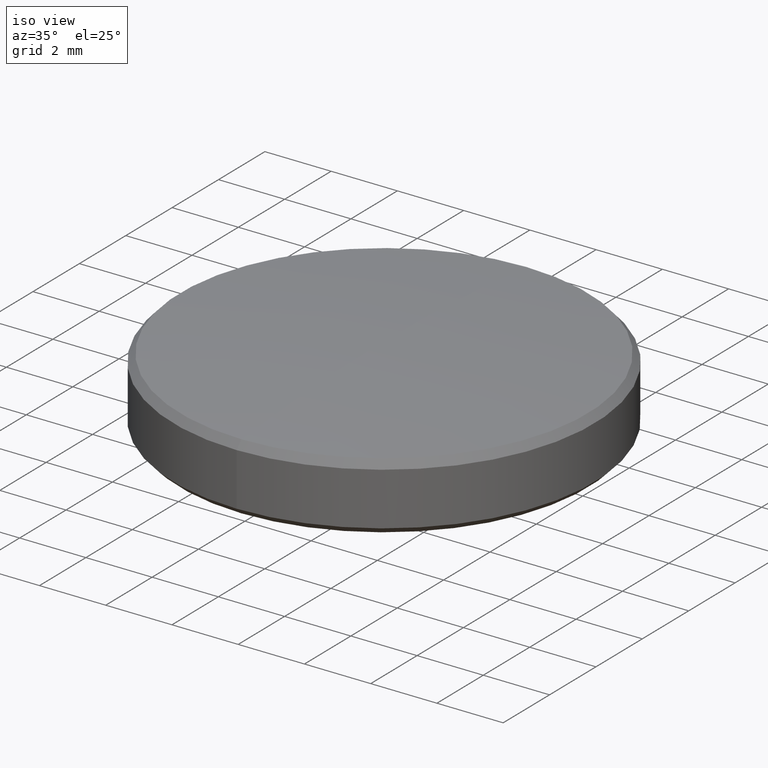
[diagram: clean part render]
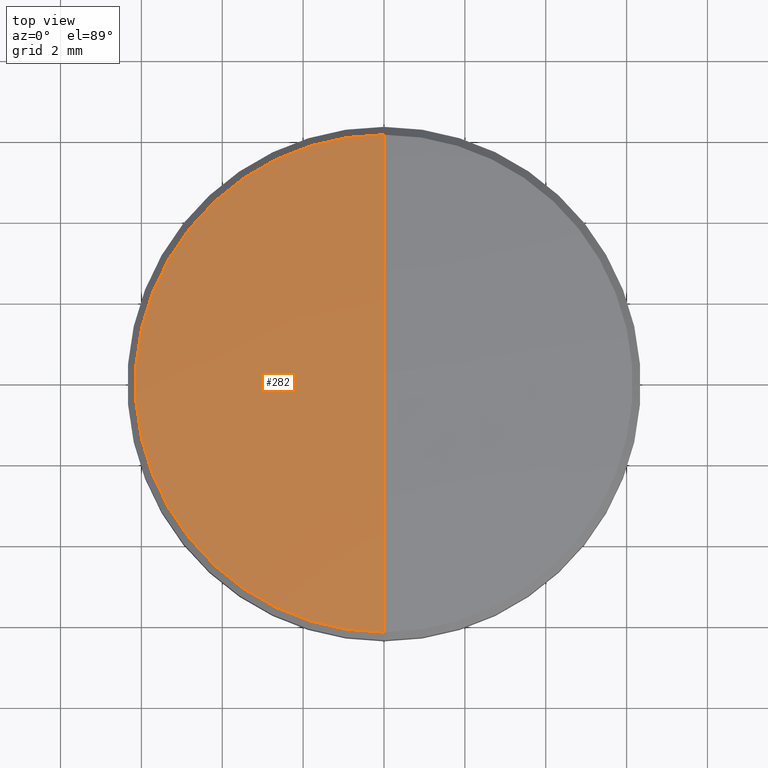
[diagram: tour spotlight — one face highlighted and labeled with its STEP entity id]
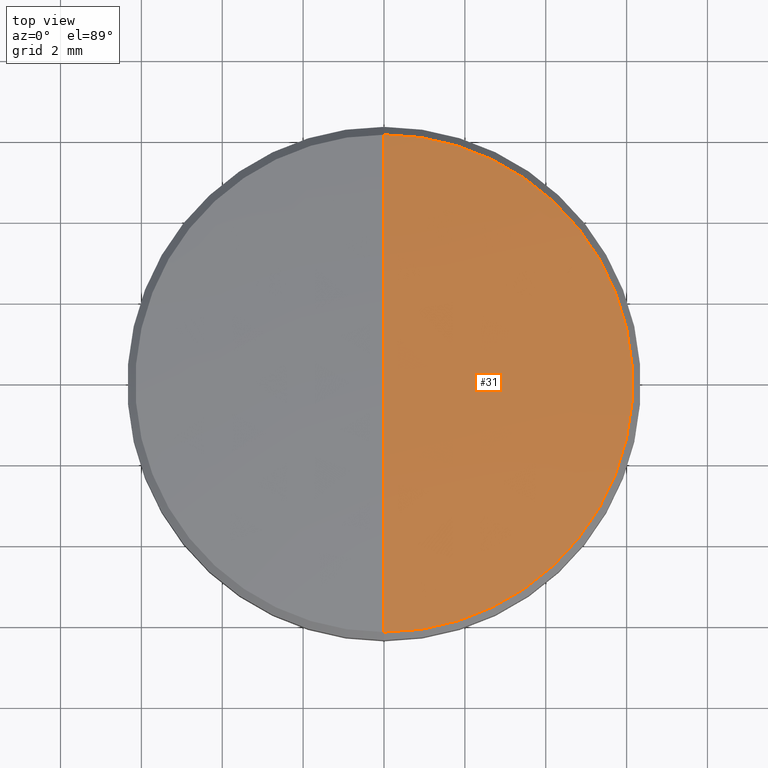
[diagram: tour spotlight — one face highlighted and labeled with its STEP entity id]
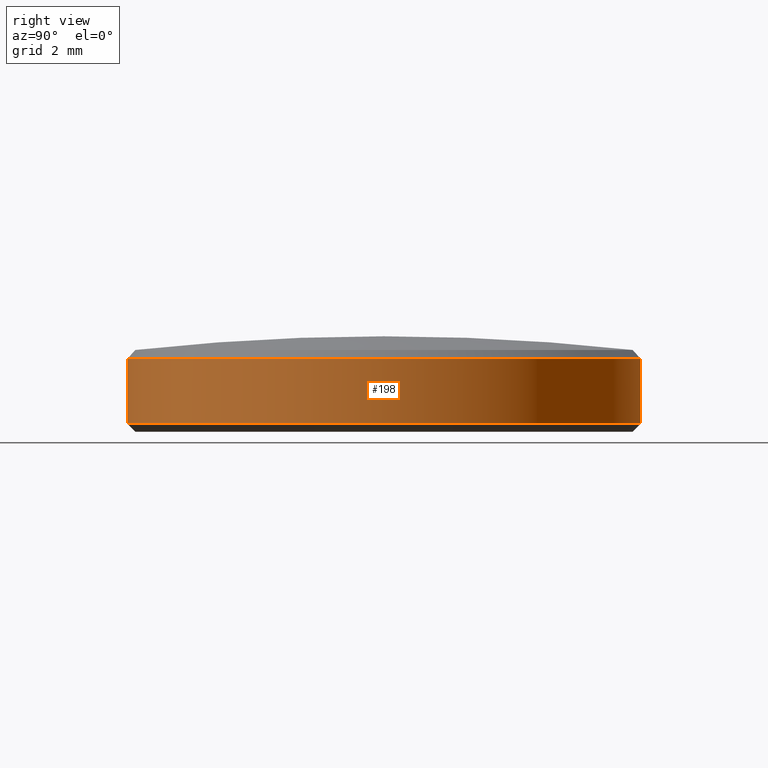
[diagram: tour spotlight — one face highlighted and labeled with its STEP entity id]
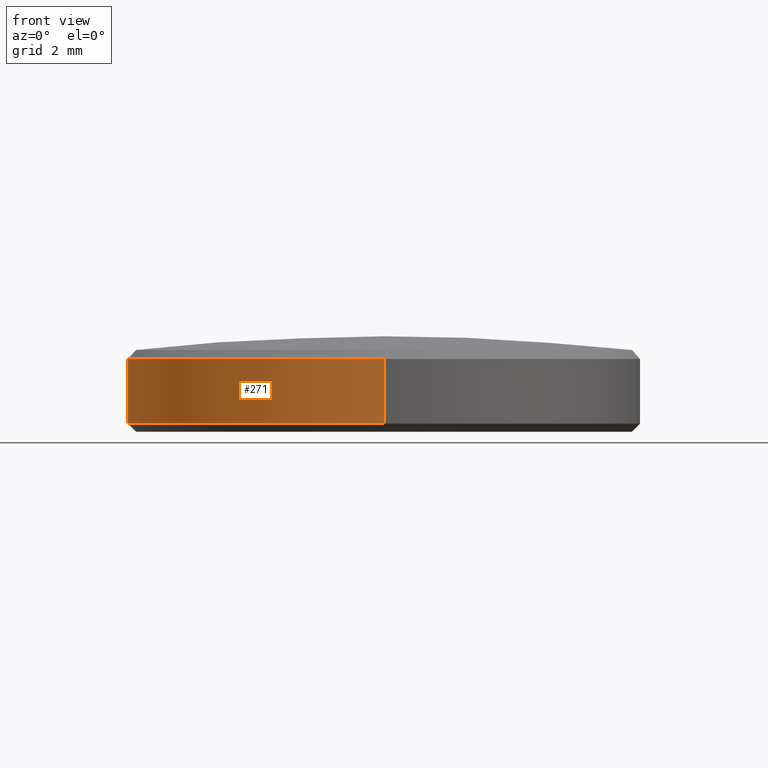
[diagram: tour spotlight — one face highlighted and labeled with its STEP entity id]
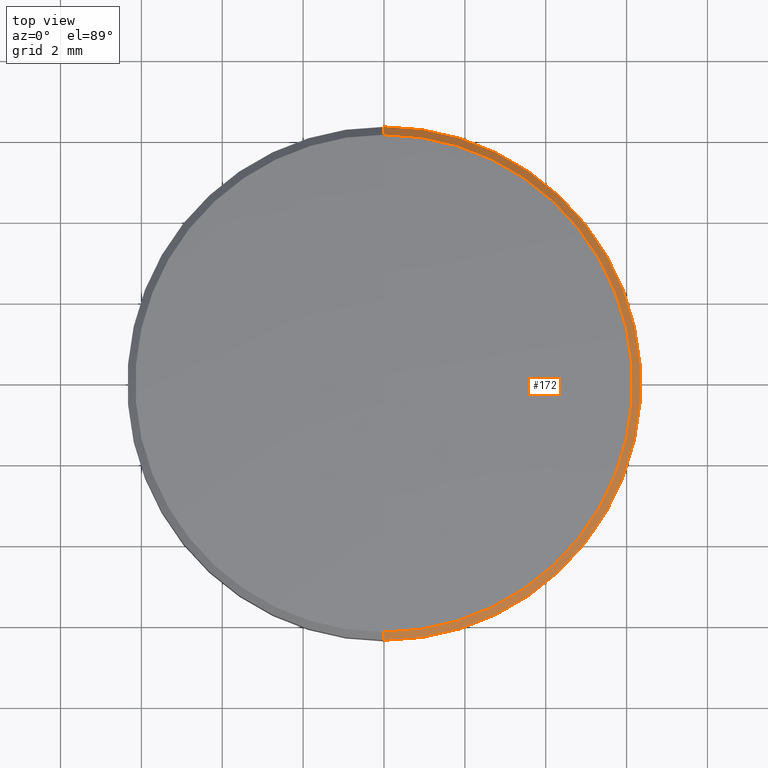
[diagram: tour spotlight — one face highlighted and labeled with its STEP entity id]
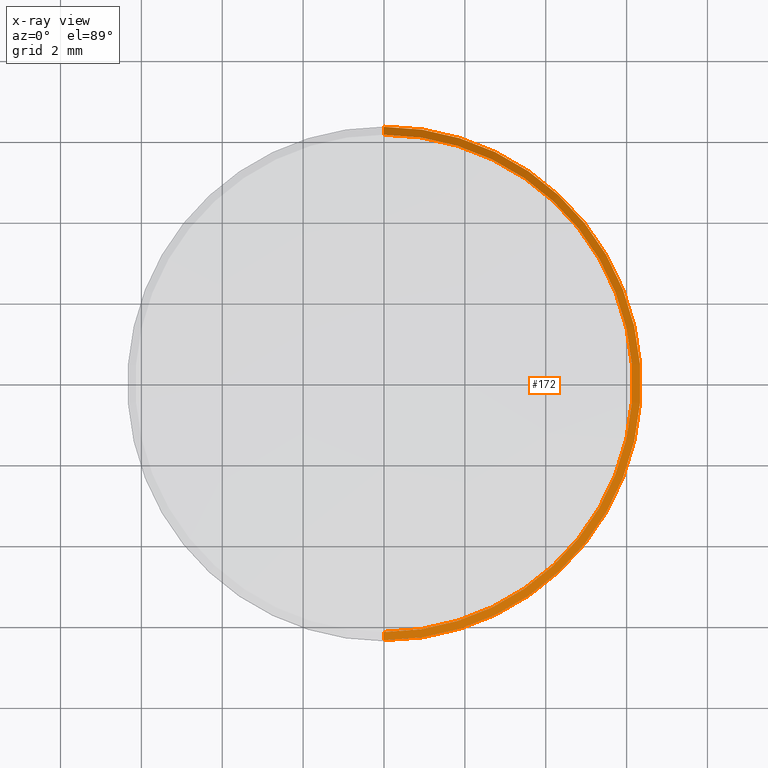
[diagram: x-ray of the same camera — body ghosted, this tour face saturated]
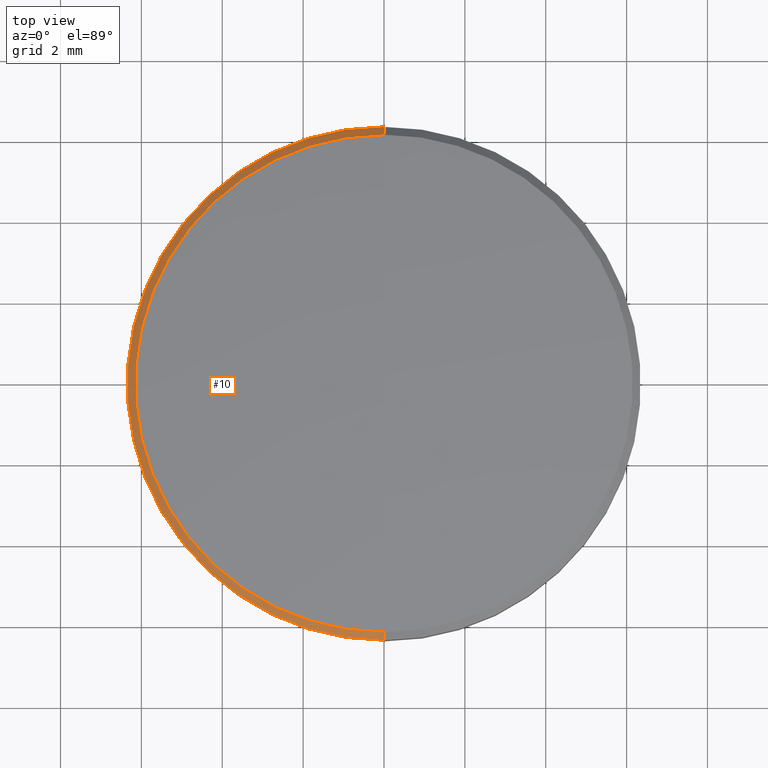
[diagram: tour spotlight — one face highlighted and labeled with its STEP entity id]
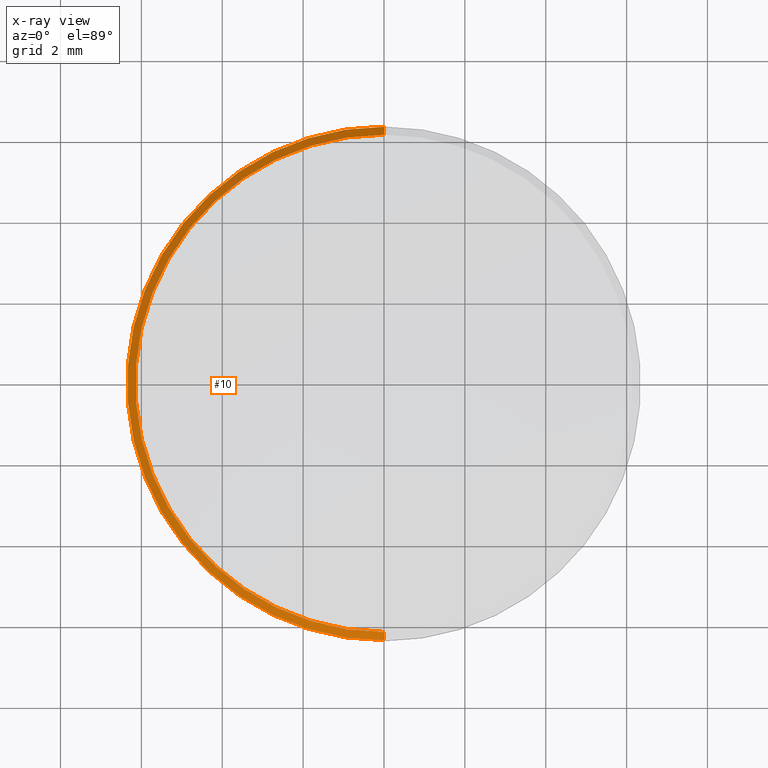
[diagram: x-ray of the same camera — body ghosted, this tour face saturated]
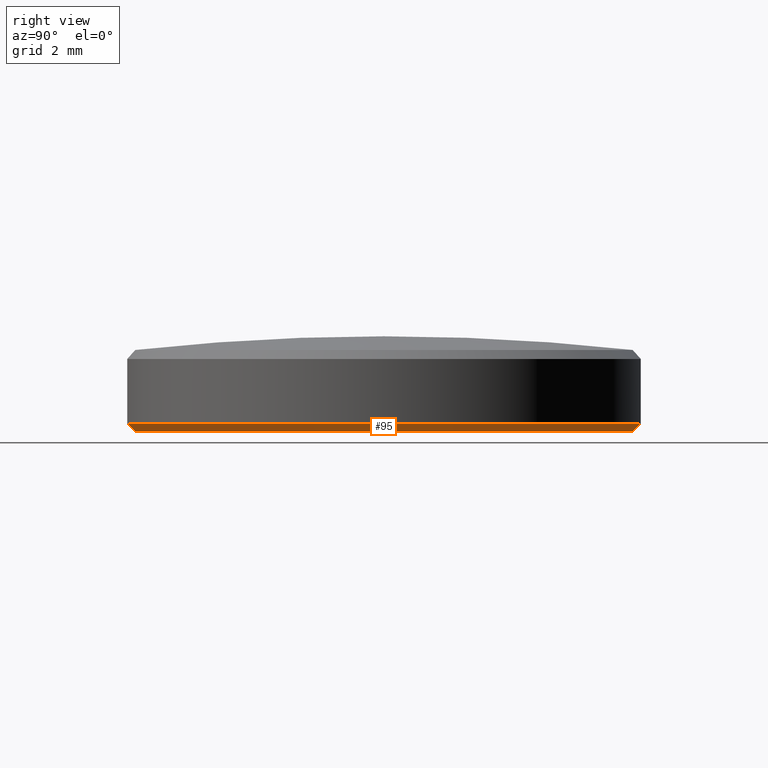
[diagram: tour spotlight — one face highlighted and labeled with its STEP entity id]
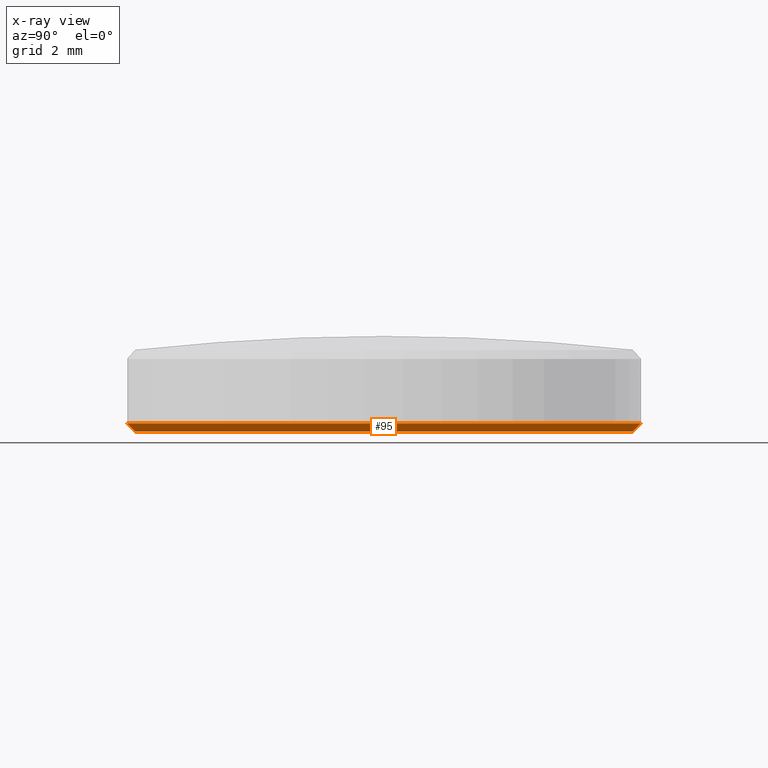
[diagram: x-ray of the same camera — body ghosted, this tour face saturated]
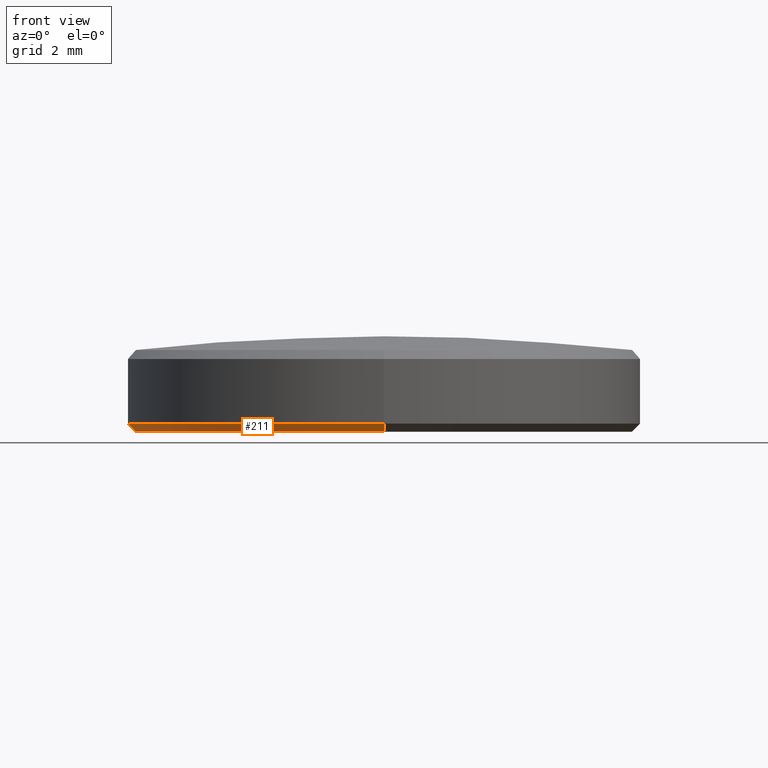
[diagram: tour spotlight — one face highlighted and labeled with its STEP entity id]
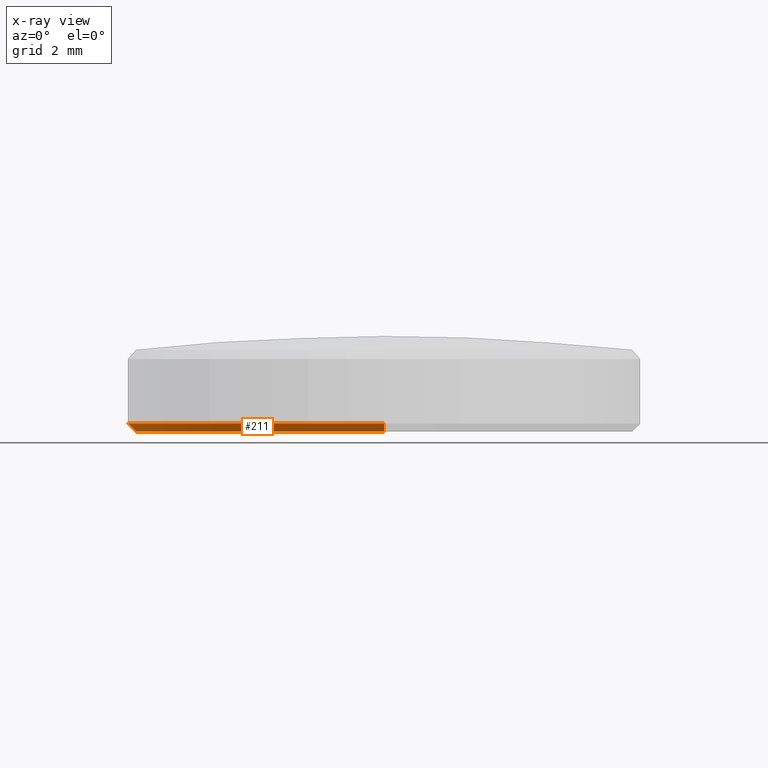
[diagram: x-ray of the same camera — body ghosted, this tour face saturated]
A machine part: a face-by-face anatomy tour. The part has 9 B-rep faces; the first image is the clean iso view, then the 8 largest visible faces are spotlighted one at a time (largest first), each with its STEP entity span.

Face 1 — top view, entity #282. In plain terms, the highlighted spherical surface has radius 56.106 mm.
Definition (entity closure, byte-faithful):
#30 = DIRECTION ( 'NONE',  ( 0.0000000000000000000, 1.000000000000000000, 2.473494422666810435E-16 ) ) ;
#38 = CARTESIAN_POINT ( 'NONE',  ( 0.0000000000000000000, 6.601363010914935765E-15, -54.92600000000003035 ) ) ;
#41 = CARTESIAN_POINT ( 'NONE',  ( 0.0000000000000000000, 6.151640121288144414, 0.8417376250657764292 ) ) ;
#42 = EDGE_CURVE ( 'NONE', #113, #68, #43, .T. ) ;
#43 = CIRCLE ( 'NONE', #265, 56.10600000000020060 ) ;
#50 = CIRCLE ( 'NONE', #201, 56.10600000000020060 ) ;
#68 = VERTEX_POINT ( 'NONE', #125 ) ;
#80 = DIRECTION ( 'NONE',  ( 1.000000000000000000, 1.224646799147353207E-16, 3.749275628560213069E-32 ) ) ;
#110 = VERTEX_POINT ( 'NONE', #41 ) ;
#113 = VERTEX_POINT ( 'NONE', #149 ) ;
#125 = CARTESIAN_POINT ( 'NONE',  ( 7.533586384041974254E-16, -6.151640121288164842, 0.8417376250657746528 ) ) ;
#126 = DIRECTION ( 'NONE',  ( -1.224646799147353207E-16, 1.000000000000000000, 0.0000000000000000000 ) ) ;
#127 = ORIENTED_EDGE ( 'NONE', *, *, #180, .T. ) ;
#133 = DIRECTION ( 'NONE',  ( -1.000000000000000000, 0.0000000000000000000, 0.0000000000000000000 ) ) ;
#142 = DIRECTION ( 'NONE',  ( 1.000000000000000000, 0.0000000000000000000, -0.0000000000000000000 ) ) ;
#149 = CARTESIAN_POINT ( 'NONE',  ( 0.0000000000000000000, -7.140076345326613382E-15, 1.180000000000167137 ) ) ;
#164 = EDGE_CURVE ( 'NONE', #113, #110, #50, .T. ) ;
#165 = CARTESIAN_POINT ( 'NONE',  ( 0.0000000000000000000, 6.601363010914935765E-15, -54.92600000000003035 ) ) ;
#173 = AXIS2_PLACEMENT_3D ( 'NONE', #165, #142, #30 ) ;
#176 = ORIENTED_EDGE ( 'NONE', *, *, #42, .F. ) ;
#180 = EDGE_CURVE ( 'NONE', #110, #68, #221, .T. ) ;
#183 = DIRECTION ( 'NONE',  ( 0.0000000000000000000, 1.000000000000000000, 2.996182573891187895E-16 ) ) ;
#189 = SPHERICAL_SURFACE ( 'NONE', #173, 56.10600000000020060 ) ;
#201 = AXIS2_PLACEMENT_3D ( 'NONE', #257, #133, #255 ) ;
#217 = AXIS2_PLACEMENT_3D ( 'NONE', #299, #252, #183 ) ;
#221 = CIRCLE ( 'NONE', #217, 6.151640121288199481 ) ;
#222 = EDGE_LOOP ( 'NONE', ( #176, #293, #127 ) ) ;
#252 = DIRECTION ( 'NONE',  ( 0.0000000000000000000, -3.061515884555845524E-16, 1.000000000000000000 ) ) ;
#255 = DIRECTION ( 'NONE',  ( 0.0000000000000000000, 0.0000000000000000000, 1.000000000000000000 ) ) ;
#257 = CARTESIAN_POINT ( 'NONE',  ( 0.0000000000000000000, 6.601363010914935765E-15, -54.92600000000003035 ) ) ;
#265 = AXIS2_PLACEMENT_3D ( 'NONE', #38, #80, #126 ) ;
#282 = ADVANCED_FACE ( 'NONE', ( #284 ), #189, .T. ) ;
#284 = FACE_OUTER_BOUND ( 'NONE', #222, .T. ) ;
#293 = ORIENTED_EDGE ( 'NONE', *, *, #164, .T. ) ;
#299 = CARTESIAN_POINT ( 'NONE',  ( 0.0000000000000000000, -1.047201844757322996E-14, 0.8417376250657790937 ) ) ;

Face 2 — top view, entity #31. In plain terms, the highlighted spherical surface has radius 56.106 mm.
Definition (entity closure, byte-faithful):
#28 = AXIS2_PLACEMENT_3D ( 'NONE', #129, #224, #78 ) ;
#31 = ADVANCED_FACE ( 'NONE', ( #36 ), #97, .T. ) ;
#36 = FACE_OUTER_BOUND ( 'NONE', #254, .T. ) ;
#38 = CARTESIAN_POINT ( 'NONE',  ( 0.0000000000000000000, 6.601363010914935765E-15, -54.92600000000003035 ) ) ;
#41 = CARTESIAN_POINT ( 'NONE',  ( 0.0000000000000000000, 6.151640121288144414, 0.8417376250657764292 ) ) ;
#42 = EDGE_CURVE ( 'NONE', #113, #68, #43, .T. ) ;
#43 = CIRCLE ( 'NONE', #265, 56.10600000000020060 ) ;
#45 = DIRECTION ( 'NONE',  ( 0.0000000000000000000, -3.061515884555845524E-16, 1.000000000000000000 ) ) ;
#50 = CIRCLE ( 'NONE', #201, 56.10600000000020060 ) ;
#68 = VERTEX_POINT ( 'NONE', #125 ) ;
#78 = DIRECTION ( 'NONE',  ( 0.0000000000000000000, 1.000000000000000000, 2.473494422666810435E-16 ) ) ;
#80 = DIRECTION ( 'NONE',  ( 1.000000000000000000, 1.224646799147353207E-16, 3.749275628560213069E-32 ) ) ;
#97 = SPHERICAL_SURFACE ( 'NONE', #28, 56.10600000000020060 ) ;
#104 = ORIENTED_EDGE ( 'NONE', *, *, #144, .T. ) ;
#107 = AXIS2_PLACEMENT_3D ( 'NONE', #160, #45, #163 ) ;
#110 = VERTEX_POINT ( 'NONE', #41 ) ;
#113 = VERTEX_POINT ( 'NONE', #149 ) ;
#125 = CARTESIAN_POINT ( 'NONE',  ( 7.533586384041974254E-16, -6.151640121288164842, 0.8417376250657746528 ) ) ;
#126 = DIRECTION ( 'NONE',  ( -1.224646799147353207E-16, 1.000000000000000000, 0.0000000000000000000 ) ) ;
#129 = CARTESIAN_POINT ( 'NONE',  ( 0.0000000000000000000, 6.601363010914935765E-15, -54.92600000000003035 ) ) ;
#133 = DIRECTION ( 'NONE',  ( -1.000000000000000000, 0.0000000000000000000, 0.0000000000000000000 ) ) ;
#144 = EDGE_CURVE ( 'NONE', #68, #110, #215, .T. ) ;
#149 = CARTESIAN_POINT ( 'NONE',  ( 0.0000000000000000000, -7.140076345326613382E-15, 1.180000000000167137 ) ) ;
#160 = CARTESIAN_POINT ( 'NONE',  ( 0.0000000000000000000, -1.047201844757322996E-14, 0.8417376250657790937 ) ) ;
#163 = DIRECTION ( 'NONE',  ( 0.0000000000000000000, 1.000000000000000000, 2.996182573891187895E-16 ) ) ;
#164 = EDGE_CURVE ( 'NONE', #113, #110, #50, .T. ) ;
#201 = AXIS2_PLACEMENT_3D ( 'NONE', #257, #133, #255 ) ;
#215 = CIRCLE ( 'NONE', #107, 6.151640121288199481 ) ;
#224 = DIRECTION ( 'NONE',  ( 1.000000000000000000, 0.0000000000000000000, -0.0000000000000000000 ) ) ;
#243 = ORIENTED_EDGE ( 'NONE', *, *, #42, .T. ) ;
#254 = EDGE_LOOP ( 'NONE', ( #274, #243, #104 ) ) ;
#255 = DIRECTION ( 'NONE',  ( 0.0000000000000000000, 0.0000000000000000000, 1.000000000000000000 ) ) ;
#257 = CARTESIAN_POINT ( 'NONE',  ( 0.0000000000000000000, 6.601363010914935765E-15, -54.92600000000003035 ) ) ;
#265 = AXIS2_PLACEMENT_3D ( 'NONE', #38, #80, #126 ) ;
#274 = ORIENTED_EDGE ( 'NONE', *, *, #164, .F. ) ;

Face 3 — right view, entity #198. In plain terms, the highlighted cylindrical surface (partial cylindrical patch) has radius 6.35 mm, axis along (-0, 0, -1).
Definition (entity closure, byte-faithful):
#14 = FACE_OUTER_BOUND ( 'NONE', #218, .T. ) ;
#15 = DIRECTION ( 'NONE',  ( -0.0000000000000000000, 3.061515884555942652E-16, -1.000000000000000000 ) ) ;
#20 = CARTESIAN_POINT ( 'NONE',  ( 0.0000000000000000000, 6.349999999999989875, -1.179999999999997939 ) ) ;
#24 = CARTESIAN_POINT ( 'NONE',  ( 0.0000000000000000000, 3.918740332231639372E-16, -0.9800000000000106404 ) ) ;
#35 = ORIENTED_EDGE ( 'NONE', *, *, #145, .T. ) ;
#39 = LINE ( 'NONE', #20, #106 ) ;
#44 = DIRECTION ( 'NONE',  ( 0.0000000000000000000, 1.000000000000000000, 3.073328992872301298E-16 ) ) ;
#47 = CARTESIAN_POINT ( 'NONE',  ( 7.776507174585680330E-16, -6.349999999999988987, 0.6194996928004703474 ) ) ;
#52 = AXIS2_PLACEMENT_3D ( 'NONE', #204, #114, #44 ) ;
#56 = DIRECTION ( 'NONE',  ( -0.0000000000000000000, 3.061515884555942652E-16, -1.000000000000000000 ) ) ;
#62 = CARTESIAN_POINT ( 'NONE',  ( 0.0000000000000000000, 6.349999999999988987, -0.9800000000000086420 ) ) ;
#63 = DIRECTION ( 'NONE',  ( 0.0000000000000000000, 1.000000000000000000, 3.073328992872301298E-16 ) ) ;
#82 = CIRCLE ( 'NONE', #147, 6.349999999999988987 ) ;
#84 = CARTESIAN_POINT ( 'NONE',  ( 7.776507174585680330E-16, -6.349999999999988098, -1.180000000000001714 ) ) ;
#102 = EDGE_CURVE ( 'NONE', #213, #191, #39, .T. ) ;
#106 = VECTOR ( 'NONE', #56, 1000.000000000000000 ) ;
#114 = DIRECTION ( 'NONE',  ( -0.0000000000000000000, 3.061515884555942652E-16, -1.000000000000000000 ) ) ;
#118 = VECTOR ( 'NONE', #15, 1000.000000000000000 ) ;
#120 = CIRCLE ( 'NONE', #210, 6.349999999999988987 ) ;
#141 = LINE ( 'NONE', #84, #118 ) ;
#145 = EDGE_CURVE ( 'NONE', #263, #162, #141, .T. ) ;
#147 = AXIS2_PLACEMENT_3D ( 'NONE', #24, #200, #63 ) ;
#156 = CARTESIAN_POINT ( 'NONE',  ( 0.0000000000000000000, -9.781533846193895382E-17, 0.6194996928004723458 ) ) ;
#158 = CARTESIAN_POINT ( 'NONE',  ( 7.776507174585680330E-16, -6.349999999999988987, -0.9800000000000125278 ) ) ;
#162 = VERTEX_POINT ( 'NONE', #158 ) ;
#170 = EDGE_CURVE ( 'NONE', #162, #191, #82, .T. ) ;
#178 = ORIENTED_EDGE ( 'NONE', *, *, #190, .T. ) ;
#179 = DIRECTION ( 'NONE',  ( 0.0000000000000000000, -1.000000000000000000, -3.073328992872301298E-16 ) ) ;
#181 = ORIENTED_EDGE ( 'NONE', *, *, #170, .T. ) ;
#190 = EDGE_CURVE ( 'NONE', #213, #263, #120, .T. ) ;
#191 = VERTEX_POINT ( 'NONE', #62 ) ;
#198 = ADVANCED_FACE ( 'NONE', ( #14 ), #231, .T. ) ;
#200 = DIRECTION ( 'NONE',  ( 0.0000000000000000000, -3.061515884555943639E-16, 1.000000000000000000 ) ) ;
#203 = CARTESIAN_POINT ( 'NONE',  ( 0.0000000000000000000, 6.349999999999988987, 0.6194996928004742331 ) ) ;
#204 = CARTESIAN_POINT ( 'NONE',  ( 0.0000000000000000000, 4.531043509142794475E-16, -1.179999999999999938 ) ) ;
#210 = AXIS2_PLACEMENT_3D ( 'NONE', #156, #228, #179 ) ;
#213 = VERTEX_POINT ( 'NONE', #203 ) ;
#218 = EDGE_LOOP ( 'NONE', ( #178, #35, #181, #238 ) ) ;
#228 = DIRECTION ( 'NONE',  ( -0.0000000000000000000, 3.061515884555845524E-16, -1.000000000000000000 ) ) ;
#231 = CYLINDRICAL_SURFACE ( 'NONE', #52, 6.349999999999988987 ) ;
#238 = ORIENTED_EDGE ( 'NONE', *, *, #102, .F. ) ;
#263 = VERTEX_POINT ( 'NONE', #47 ) ;

Face 4 — front view, entity #271. In plain terms, the highlighted cylindrical surface (partial cylindrical patch) has radius 6.35 mm, axis along (-0, 0, -1).
Definition (entity closure, byte-faithful):
#1 = DIRECTION ( 'NONE',  ( 0.0000000000000000000, 1.000000000000000000, 3.073328992872301298E-16 ) ) ;
#15 = DIRECTION ( 'NONE',  ( -0.0000000000000000000, 3.061515884555942652E-16, -1.000000000000000000 ) ) ;
#20 = CARTESIAN_POINT ( 'NONE',  ( 0.0000000000000000000, 6.349999999999989875, -1.179999999999997939 ) ) ;
#33 = AXIS2_PLACEMENT_3D ( 'NONE', #79, #177, #108 ) ;
#39 = LINE ( 'NONE', #20, #106 ) ;
#47 = CARTESIAN_POINT ( 'NONE',  ( 7.776507174585680330E-16, -6.349999999999988987, 0.6194996928004703474 ) ) ;
#54 = EDGE_CURVE ( 'NONE', #263, #213, #115, .T. ) ;
#56 = DIRECTION ( 'NONE',  ( -0.0000000000000000000, 3.061515884555942652E-16, -1.000000000000000000 ) ) ;
#62 = CARTESIAN_POINT ( 'NONE',  ( 0.0000000000000000000, 6.349999999999988987, -0.9800000000000086420 ) ) ;
#79 = CARTESIAN_POINT ( 'NONE',  ( 0.0000000000000000000, -9.781533846193895382E-17, 0.6194996928004723458 ) ) ;
#84 = CARTESIAN_POINT ( 'NONE',  ( 7.776507174585680330E-16, -6.349999999999988098, -1.180000000000001714 ) ) ;
#88 = ORIENTED_EDGE ( 'NONE', *, *, #145, .F. ) ;
#102 = EDGE_CURVE ( 'NONE', #213, #191, #39, .T. ) ;
#106 = VECTOR ( 'NONE', #56, 1000.000000000000000 ) ;
#108 = DIRECTION ( 'NONE',  ( 0.0000000000000000000, -1.000000000000000000, -3.073328992872301298E-16 ) ) ;
#111 = CYLINDRICAL_SURFACE ( 'NONE', #167, 6.349999999999988987 ) ;
#115 = CIRCLE ( 'NONE', #33, 6.349999999999988987 ) ;
#118 = VECTOR ( 'NONE', #15, 1000.000000000000000 ) ;
#137 = DIRECTION ( 'NONE',  ( 0.0000000000000000000, -3.061515884555943639E-16, 1.000000000000000000 ) ) ;
#141 = LINE ( 'NONE', #84, #118 ) ;
#145 = EDGE_CURVE ( 'NONE', #263, #162, #141, .T. ) ;
#158 = CARTESIAN_POINT ( 'NONE',  ( 7.776507174585680330E-16, -6.349999999999988987, -0.9800000000000125278 ) ) ;
#161 = CIRCLE ( 'NONE', #290, 6.349999999999988987 ) ;
#162 = VERTEX_POINT ( 'NONE', #158 ) ;
#167 = AXIS2_PLACEMENT_3D ( 'NONE', #205, #253, #1 ) ;
#177 = DIRECTION ( 'NONE',  ( -0.0000000000000000000, 3.061515884555845524E-16, -1.000000000000000000 ) ) ;
#191 = VERTEX_POINT ( 'NONE', #62 ) ;
#203 = CARTESIAN_POINT ( 'NONE',  ( 0.0000000000000000000, 6.349999999999988987, 0.6194996928004742331 ) ) ;
#205 = CARTESIAN_POINT ( 'NONE',  ( 0.0000000000000000000, 4.531043509142794475E-16, -1.179999999999999938 ) ) ;
#206 = ORIENTED_EDGE ( 'NONE', *, *, #54, .T. ) ;
#208 = EDGE_CURVE ( 'NONE', #191, #162, #161, .T. ) ;
#213 = VERTEX_POINT ( 'NONE', #203 ) ;
#246 = ORIENTED_EDGE ( 'NONE', *, *, #208, .T. ) ;
#250 = EDGE_LOOP ( 'NONE', ( #88, #206, #269, #246 ) ) ;
#253 = DIRECTION ( 'NONE',  ( -0.0000000000000000000, 3.061515884555942652E-16, -1.000000000000000000 ) ) ;
#263 = VERTEX_POINT ( 'NONE', #47 ) ;
#269 = ORIENTED_EDGE ( 'NONE', *, *, #102, .T. ) ;
#271 = ADVANCED_FACE ( 'NONE', ( #292 ), #111, .T. ) ;
#275 = DIRECTION ( 'NONE',  ( 0.0000000000000000000, 1.000000000000000000, 3.073328992872301298E-16 ) ) ;
#276 = CARTESIAN_POINT ( 'NONE',  ( 0.0000000000000000000, 3.918740332231639372E-16, -0.9800000000000106404 ) ) ;
#290 = AXIS2_PLACEMENT_3D ( 'NONE', #276, #137, #275 ) ;
#292 = FACE_OUTER_BOUND ( 'NONE', #250, .T. ) ;

Face 5 — top view, entity #172. An x-ray twin of the same camera follows (body ghosted, this face saturated) — the face is partly hidden behind the body. In plain terms, the highlighted conical surface has half-angle 41.751 deg.
Definition (entity closure, byte-faithful):
#8 = ORIENTED_EDGE ( 'NONE', *, *, #175, .F. ) ;
#23 = DIRECTION ( 'NONE',  ( -0.0000000000000000000, 3.061515884555845524E-16, -1.000000000000000000 ) ) ;
#26 = DIRECTION ( 'NONE',  ( 0.0000000000000000000, 0.6658908971551258382, -0.7460491358388813277 ) ) ;
#34 = ORIENTED_EDGE ( 'NONE', *, *, #190, .F. ) ;
#41 = CARTESIAN_POINT ( 'NONE',  ( 0.0000000000000000000, 6.151640121288144414, 0.8417376250657764292 ) ) ;
#45 = DIRECTION ( 'NONE',  ( 0.0000000000000000000, -3.061515884555845524E-16, 1.000000000000000000 ) ) ;
#47 = CARTESIAN_POINT ( 'NONE',  ( 7.776507174585680330E-16, -6.349999999999988987, 0.6194996928004703474 ) ) ;
#68 = VERTEX_POINT ( 'NONE', #125 ) ;
#71 = VECTOR ( 'NONE', #26, 999.9999999999998863 ) ;
#87 = CARTESIAN_POINT ( 'NONE',  ( 0.0000000000000000000, 6.349999999999988987, 0.6194996928004742331 ) ) ;
#92 = DIRECTION ( 'NONE',  ( 8.154811557823840409E-17, -0.6658908971551253941, -0.7460491358388817718 ) ) ;
#107 = AXIS2_PLACEMENT_3D ( 'NONE', #160, #45, #163 ) ;
#110 = VERTEX_POINT ( 'NONE', #41 ) ;
#112 = DIRECTION ( 'NONE',  ( 0.0000000000000000000, 1.000000000000000000, 3.073328992872301298E-16 ) ) ;
#120 = CIRCLE ( 'NONE', #210, 6.349999999999988987 ) ;
#121 = AXIS2_PLACEMENT_3D ( 'NONE', #248, #23, #112 ) ;
#122 = LINE ( 'NONE', #209, #219 ) ;
#125 = CARTESIAN_POINT ( 'NONE',  ( 7.533586384041974254E-16, -6.151640121288164842, 0.8417376250657746528 ) ) ;
#143 = CONICAL_SURFACE ( 'NONE', #121, 6.349999999999988987, 0.7286873360257888343 ) ;
#144 = EDGE_CURVE ( 'NONE', #68, #110, #215, .T. ) ;
#156 = CARTESIAN_POINT ( 'NONE',  ( 0.0000000000000000000, -9.781533846193895382E-17, 0.6194996928004723458 ) ) ;
#160 = CARTESIAN_POINT ( 'NONE',  ( 0.0000000000000000000, -1.047201844757322996E-14, 0.8417376250657790937 ) ) ;
#163 = DIRECTION ( 'NONE',  ( 0.0000000000000000000, 1.000000000000000000, 2.996182573891187895E-16 ) ) ;
#169 = ORIENTED_EDGE ( 'NONE', *, *, #144, .F. ) ;
#172 = ADVANCED_FACE ( 'NONE', ( #196 ), #143, .T. ) ;
#175 = EDGE_CURVE ( 'NONE', #110, #213, #202, .T. ) ;
#179 = DIRECTION ( 'NONE',  ( 0.0000000000000000000, -1.000000000000000000, -3.073328992872301298E-16 ) ) ;
#190 = EDGE_CURVE ( 'NONE', #213, #263, #120, .T. ) ;
#196 = FACE_OUTER_BOUND ( 'NONE', #273, .T. ) ;
#202 = LINE ( 'NONE', #87, #71 ) ;
#203 = CARTESIAN_POINT ( 'NONE',  ( 0.0000000000000000000, 6.349999999999988987, 0.6194996928004742331 ) ) ;
#209 = CARTESIAN_POINT ( 'NONE',  ( 7.776507174585680330E-16, -6.349999999999988987, 0.6194996928004703474 ) ) ;
#210 = AXIS2_PLACEMENT_3D ( 'NONE', #156, #228, #179 ) ;
#213 = VERTEX_POINT ( 'NONE', #203 ) ;
#215 = CIRCLE ( 'NONE', #107, 6.151640121288199481 ) ;
#219 = VECTOR ( 'NONE', #92, 999.9999999999998863 ) ;
#228 = DIRECTION ( 'NONE',  ( -0.0000000000000000000, 3.061515884555845524E-16, -1.000000000000000000 ) ) ;
#248 = CARTESIAN_POINT ( 'NONE',  ( 0.0000000000000000000, -9.781533846194231880E-17, 0.6194996928004723458 ) ) ;
#263 = VERTEX_POINT ( 'NONE', #47 ) ;
#273 = EDGE_LOOP ( 'NONE', ( #169, #291, #34, #8 ) ) ;
#281 = EDGE_CURVE ( 'NONE', #68, #263, #122, .T. ) ;
#291 = ORIENTED_EDGE ( 'NONE', *, *, #281, .T. ) ;

Face 6 — top view, entity #10. An x-ray twin of the same camera follows (body ghosted, this face saturated) — the face is partly hidden behind the body. In plain terms, the highlighted conical surface has half-angle 41.751 deg.
Definition (entity closure, byte-faithful):
#10 = ADVANCED_FACE ( 'NONE', ( #232 ), #53, .T. ) ;
#13 = AXIS2_PLACEMENT_3D ( 'NONE', #266, #109, #270 ) ;
#16 = ORIENTED_EDGE ( 'NONE', *, *, #281, .F. ) ;
#18 = ORIENTED_EDGE ( 'NONE', *, *, #54, .F. ) ;
#26 = DIRECTION ( 'NONE',  ( 0.0000000000000000000, 0.6658908971551258382, -0.7460491358388813277 ) ) ;
#33 = AXIS2_PLACEMENT_3D ( 'NONE', #79, #177, #108 ) ;
#37 = ORIENTED_EDGE ( 'NONE', *, *, #180, .F. ) ;
#41 = CARTESIAN_POINT ( 'NONE',  ( 0.0000000000000000000, 6.151640121288144414, 0.8417376250657764292 ) ) ;
#47 = CARTESIAN_POINT ( 'NONE',  ( 7.776507174585680330E-16, -6.349999999999988987, 0.6194996928004703474 ) ) ;
#53 = CONICAL_SURFACE ( 'NONE', #13, 6.349999999999988987, 0.7286873360257888343 ) ;
#54 = EDGE_CURVE ( 'NONE', #263, #213, #115, .T. ) ;
#68 = VERTEX_POINT ( 'NONE', #125 ) ;
#71 = VECTOR ( 'NONE', #26, 999.9999999999998863 ) ;
#79 = CARTESIAN_POINT ( 'NONE',  ( 0.0000000000000000000, -9.781533846193895382E-17, 0.6194996928004723458 ) ) ;
#87 = CARTESIAN_POINT ( 'NONE',  ( 0.0000000000000000000, 6.349999999999988987, 0.6194996928004742331 ) ) ;
#92 = DIRECTION ( 'NONE',  ( 8.154811557823840409E-17, -0.6658908971551253941, -0.7460491358388817718 ) ) ;
#93 = ORIENTED_EDGE ( 'NONE', *, *, #175, .T. ) ;
#108 = DIRECTION ( 'NONE',  ( 0.0000000000000000000, -1.000000000000000000, -3.073328992872301298E-16 ) ) ;
#109 = DIRECTION ( 'NONE',  ( -0.0000000000000000000, 3.061515884555845524E-16, -1.000000000000000000 ) ) ;
#110 = VERTEX_POINT ( 'NONE', #41 ) ;
#115 = CIRCLE ( 'NONE', #33, 6.349999999999988987 ) ;
#122 = LINE ( 'NONE', #209, #219 ) ;
#125 = CARTESIAN_POINT ( 'NONE',  ( 7.533586384041974254E-16, -6.151640121288164842, 0.8417376250657746528 ) ) ;
#134 = EDGE_LOOP ( 'NONE', ( #16, #37, #93, #18 ) ) ;
#175 = EDGE_CURVE ( 'NONE', #110, #213, #202, .T. ) ;
#177 = DIRECTION ( 'NONE',  ( -0.0000000000000000000, 3.061515884555845524E-16, -1.000000000000000000 ) ) ;
#180 = EDGE_CURVE ( 'NONE', #110, #68, #221, .T. ) ;
#183 = DIRECTION ( 'NONE',  ( 0.0000000000000000000, 1.000000000000000000, 2.996182573891187895E-16 ) ) ;
#202 = LINE ( 'NONE', #87, #71 ) ;
#203 = CARTESIAN_POINT ( 'NONE',  ( 0.0000000000000000000, 6.349999999999988987, 0.6194996928004742331 ) ) ;
#209 = CARTESIAN_POINT ( 'NONE',  ( 7.776507174585680330E-16, -6.349999999999988987, 0.6194996928004703474 ) ) ;
#213 = VERTEX_POINT ( 'NONE', #203 ) ;
#217 = AXIS2_PLACEMENT_3D ( 'NONE', #299, #252, #183 ) ;
#219 = VECTOR ( 'NONE', #92, 999.9999999999998863 ) ;
#221 = CIRCLE ( 'NONE', #217, 6.151640121288199481 ) ;
#232 = FACE_OUTER_BOUND ( 'NONE', #134, .T. ) ;
#252 = DIRECTION ( 'NONE',  ( 0.0000000000000000000, -3.061515884555845524E-16, 1.000000000000000000 ) ) ;
#263 = VERTEX_POINT ( 'NONE', #47 ) ;
#266 = CARTESIAN_POINT ( 'NONE',  ( 0.0000000000000000000, -9.781533846194231880E-17, 0.6194996928004723458 ) ) ;
#270 = DIRECTION ( 'NONE',  ( 0.0000000000000000000, 1.000000000000000000, 3.073328992872301298E-16 ) ) ;
#281 = EDGE_CURVE ( 'NONE', #68, #263, #122, .T. ) ;
#299 = CARTESIAN_POINT ( 'NONE',  ( 0.0000000000000000000, -1.047201844757322996E-14, 0.8417376250657790937 ) ) ;

Face 7 — right view, entity #95. An x-ray twin of the same camera follows (body ghosted, this face saturated) — the face is partly hidden behind the body. In plain terms, the highlighted conical surface has half-angle 45 deg.
Definition (entity closure, byte-faithful):
#3 = ORIENTED_EDGE ( 'NONE', *, *, #170, .F. ) ;
#12 = ORIENTED_EDGE ( 'NONE', *, *, #214, .F. ) ;
#17 = DIRECTION ( 'NONE',  ( 8.659560562354934091E-17, 0.7071067811865473507, 0.7071067811865477948 ) ) ;
#21 = CARTESIAN_POINT ( 'NONE',  ( 7.531577814756221078E-16, 6.150000000000000355, -1.179999999999998828 ) ) ;
#24 = CARTESIAN_POINT ( 'NONE',  ( 0.0000000000000000000, 3.918740332231639372E-16, -0.9800000000000106404 ) ) ;
#27 = VECTOR ( 'NONE', #17, 1000.000000000000000 ) ;
#40 = VECTOR ( 'NONE', #277, 1000.000000000000000 ) ;
#48 = DIRECTION ( 'NONE',  ( -0.0000000000000000000, 3.061515884555942652E-16, -1.000000000000000000 ) ) ;
#51 = FACE_OUTER_BOUND ( 'NONE', #229, .T. ) ;
#57 = VERTEX_POINT ( 'NONE', #225 ) ;
#62 = CARTESIAN_POINT ( 'NONE',  ( 0.0000000000000000000, 6.349999999999988987, -0.9800000000000086420 ) ) ;
#63 = DIRECTION ( 'NONE',  ( 0.0000000000000000000, 1.000000000000000000, 3.073328992872301298E-16 ) ) ;
#69 = CARTESIAN_POINT ( 'NONE',  ( 0.0000000000000000000, 4.531043509142796447E-16, -1.180000000000000604 ) ) ;
#74 = EDGE_CURVE ( 'NONE', #105, #191, #157, .T. ) ;
#82 = CIRCLE ( 'NONE', #147, 6.349999999999988987 ) ;
#91 = DIRECTION ( 'NONE',  ( 0.0000000000000000000, 1.000000000000000000, 3.173274651177086317E-16 ) ) ;
#95 = ADVANCED_FACE ( 'NONE', ( #51 ), #297, .T. ) ;
#103 = CARTESIAN_POINT ( 'NONE',  ( 7.654042494670950704E-16, 6.150000000000000355, -1.179999999999998828 ) ) ;
#105 = VERTEX_POINT ( 'NONE', #103 ) ;
#132 = DIRECTION ( 'NONE',  ( 0.0000000000000000000, -1.000000000000000000, -3.173274651177086317E-16 ) ) ;
#135 = CARTESIAN_POINT ( 'NONE',  ( 0.0000000000000000000, -6.149999999999998579, -1.180000000000002602 ) ) ;
#147 = AXIS2_PLACEMENT_3D ( 'NONE', #24, #200, #63 ) ;
#150 = AXIS2_PLACEMENT_3D ( 'NONE', #153, #251, #132 ) ;
#153 = CARTESIAN_POINT ( 'NONE',  ( 0.0000000000000000000, 4.531043509142797433E-16, -1.180000000000000604 ) ) ;
#157 = LINE ( 'NONE', #21, #27 ) ;
#158 = CARTESIAN_POINT ( 'NONE',  ( 7.776507174585680330E-16, -6.349999999999988987, -0.9800000000000125278 ) ) ;
#162 = VERTEX_POINT ( 'NONE', #158 ) ;
#170 = EDGE_CURVE ( 'NONE', #162, #191, #82, .T. ) ;
#184 = ORIENTED_EDGE ( 'NONE', *, *, #74, .T. ) ;
#191 = VERTEX_POINT ( 'NONE', #62 ) ;
#200 = DIRECTION ( 'NONE',  ( 0.0000000000000000000, -3.061515884555943639E-16, 1.000000000000000000 ) ) ;
#214 = EDGE_CURVE ( 'NONE', #57, #162, #289, .T. ) ;
#225 = CARTESIAN_POINT ( 'NONE',  ( 0.0000000000000000000, -6.149999999999998579, -1.180000000000002602 ) ) ;
#227 = CIRCLE ( 'NONE', #285, 6.149999999999999467 ) ;
#229 = EDGE_LOOP ( 'NONE', ( #283, #184, #3, #12 ) ) ;
#251 = DIRECTION ( 'NONE',  ( 0.0000000000000000000, -3.061515884555943639E-16, 1.000000000000000000 ) ) ;
#277 = DIRECTION ( 'NONE',  ( 0.0000000000000000000, -0.7071067811865477948, 0.7071067811865473507 ) ) ;
#283 = ORIENTED_EDGE ( 'NONE', *, *, #298, .F. ) ;
#285 = AXIS2_PLACEMENT_3D ( 'NONE', #69, #48, #91 ) ;
#289 = LINE ( 'NONE', #135, #40 ) ;
#297 = CONICAL_SURFACE ( 'NONE', #150, 6.149999999999999467, 0.7853981633974482790 ) ;
#298 = EDGE_CURVE ( 'NONE', #105, #57, #227, .T. ) ;

Face 8 — front view, entity #211. An x-ray twin of the same camera follows (body ghosted, this face saturated) — the face is partly hidden behind the body. In plain terms, the highlighted conical surface has half-angle 45 deg.
Definition (entity closure, byte-faithful):
#11 = ORIENTED_EDGE ( 'NONE', *, *, #245, .F. ) ;
#17 = DIRECTION ( 'NONE',  ( 8.659560562354934091E-17, 0.7071067811865473507, 0.7071067811865477948 ) ) ;
#19 = CIRCLE ( 'NONE', #131, 6.149999999999999467 ) ;
#21 = CARTESIAN_POINT ( 'NONE',  ( 7.531577814756221078E-16, 6.150000000000000355, -1.179999999999998828 ) ) ;
#25 = FACE_OUTER_BOUND ( 'NONE', #66, .T. ) ;
#27 = VECTOR ( 'NONE', #17, 1000.000000000000000 ) ;
#40 = VECTOR ( 'NONE', #277, 1000.000000000000000 ) ;
#57 = VERTEX_POINT ( 'NONE', #225 ) ;
#61 = CARTESIAN_POINT ( 'NONE',  ( 0.0000000000000000000, 4.531043509142797433E-16, -1.180000000000000604 ) ) ;
#62 = CARTESIAN_POINT ( 'NONE',  ( 0.0000000000000000000, 6.349999999999988987, -0.9800000000000086420 ) ) ;
#66 = EDGE_LOOP ( 'NONE', ( #186, #11, #259, #174 ) ) ;
#67 = AXIS2_PLACEMENT_3D ( 'NONE', #61, #116, #138 ) ;
#74 = EDGE_CURVE ( 'NONE', #105, #191, #157, .T. ) ;
#90 = DIRECTION ( 'NONE',  ( -0.0000000000000000000, 3.061515884555942652E-16, -1.000000000000000000 ) ) ;
#100 = CONICAL_SURFACE ( 'NONE', #67, 6.149999999999999467, 0.7853981633974482790 ) ;
#103 = CARTESIAN_POINT ( 'NONE',  ( 7.654042494670950704E-16, 6.150000000000000355, -1.179999999999998828 ) ) ;
#105 = VERTEX_POINT ( 'NONE', #103 ) ;
#116 = DIRECTION ( 'NONE',  ( 0.0000000000000000000, -3.061515884555943639E-16, 1.000000000000000000 ) ) ;
#131 = AXIS2_PLACEMENT_3D ( 'NONE', #233, #90, #212 ) ;
#135 = CARTESIAN_POINT ( 'NONE',  ( 0.0000000000000000000, -6.149999999999998579, -1.180000000000002602 ) ) ;
#137 = DIRECTION ( 'NONE',  ( 0.0000000000000000000, -3.061515884555943639E-16, 1.000000000000000000 ) ) ;
#138 = DIRECTION ( 'NONE',  ( 0.0000000000000000000, -1.000000000000000000, -3.173274651177086317E-16 ) ) ;
#157 = LINE ( 'NONE', #21, #27 ) ;
#158 = CARTESIAN_POINT ( 'NONE',  ( 7.776507174585680330E-16, -6.349999999999988987, -0.9800000000000125278 ) ) ;
#161 = CIRCLE ( 'NONE', #290, 6.349999999999988987 ) ;
#162 = VERTEX_POINT ( 'NONE', #158 ) ;
#174 = ORIENTED_EDGE ( 'NONE', *, *, #208, .F. ) ;
#186 = ORIENTED_EDGE ( 'NONE', *, *, #74, .F. ) ;
#191 = VERTEX_POINT ( 'NONE', #62 ) ;
#208 = EDGE_CURVE ( 'NONE', #191, #162, #161, .T. ) ;
#211 = ADVANCED_FACE ( 'NONE', ( #25 ), #100, .T. ) ;
#212 = DIRECTION ( 'NONE',  ( 0.0000000000000000000, 1.000000000000000000, 3.173274651177086317E-16 ) ) ;
#214 = EDGE_CURVE ( 'NONE', #57, #162, #289, .T. ) ;
#225 = CARTESIAN_POINT ( 'NONE',  ( 0.0000000000000000000, -6.149999999999998579, -1.180000000000002602 ) ) ;
#233 = CARTESIAN_POINT ( 'NONE',  ( 0.0000000000000000000, 4.531043509142796447E-16, -1.180000000000000604 ) ) ;
#245 = EDGE_CURVE ( 'NONE', #57, #105, #19, .T. ) ;
#259 = ORIENTED_EDGE ( 'NONE', *, *, #214, .T. ) ;
#275 = DIRECTION ( 'NONE',  ( 0.0000000000000000000, 1.000000000000000000, 3.073328992872301298E-16 ) ) ;
#276 = CARTESIAN_POINT ( 'NONE',  ( 0.0000000000000000000, 3.918740332231639372E-16, -0.9800000000000106404 ) ) ;
#277 = DIRECTION ( 'NONE',  ( 0.0000000000000000000, -0.7071067811865477948, 0.7071067811865473507 ) ) ;
#289 = LINE ( 'NONE', #135, #40 ) ;
#290 = AXIS2_PLACEMENT_3D ( 'NONE', #276, #137, #275 ) ;